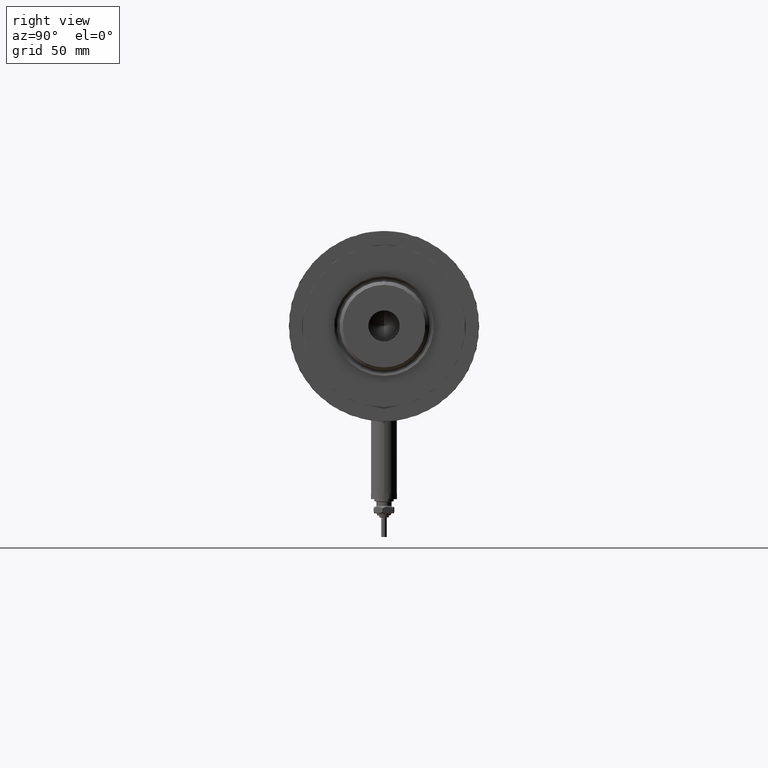
[diagram: clean part render]
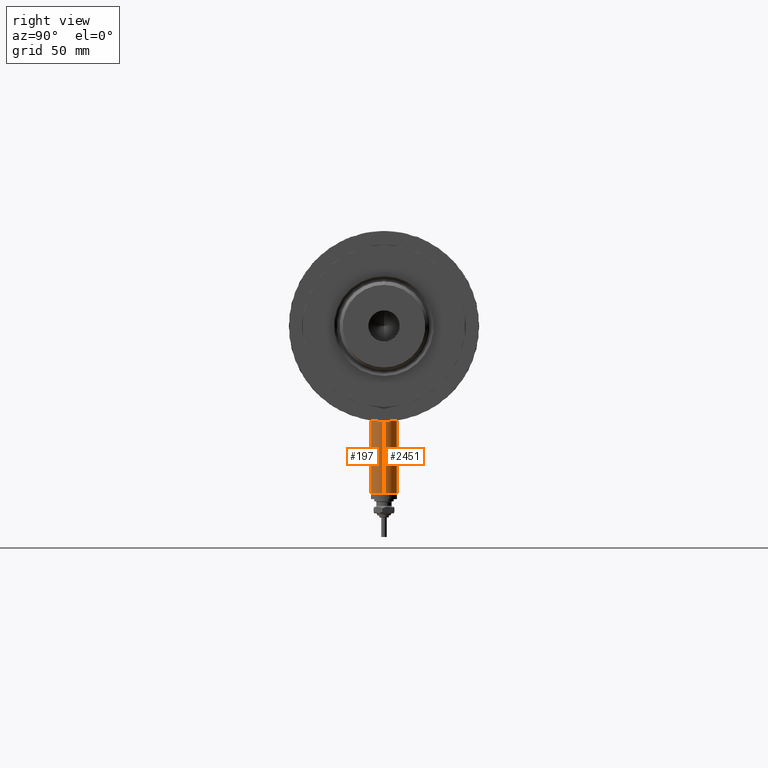
[diagram: same view with one multi-face feature highlighted, each face labeled with its STEP entity id]
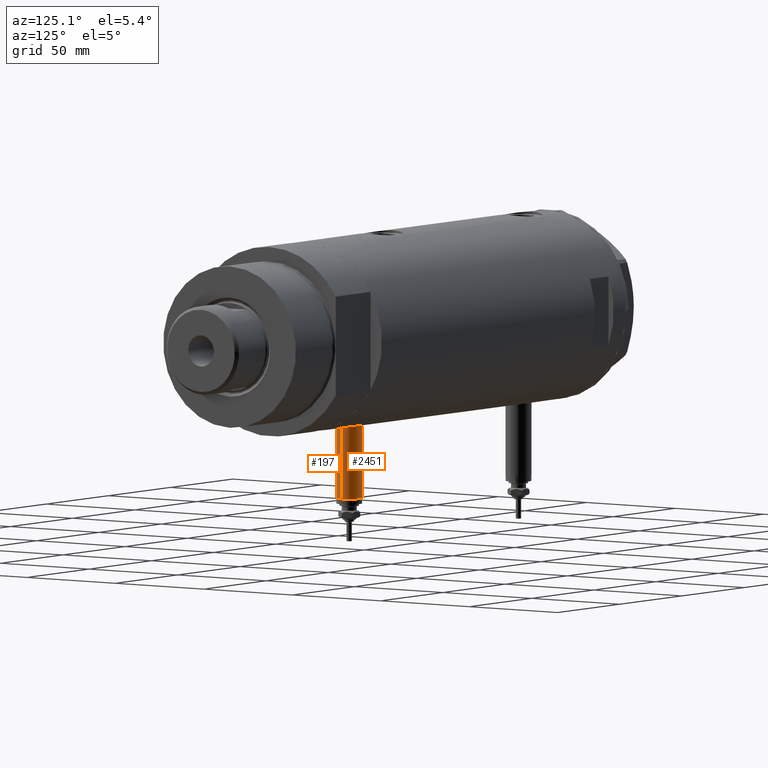
[diagram: same view with one multi-face feature highlighted, each face labeled with its STEP entity id]
A machine part, right view. The highlighted faces form ONE feature: a constant-radius fillet chain: 2 tangent blend faces with common blend radius 6 mm. The faces share edges in the B-rep.
A second angle (auxiliary view) of the same feature is appended — it is thin or edge-on in the first view.
Their STEP definitions:
[1] entity #2451 (Cylinder):
#43 = CARTESIAN_POINT ( 'NONE',  ( -77.50000000000000000, 7.347880794884122694E-16, -55.90000000000000568 ) ) ;
#56 = LINE ( 'NONE', #4762, #195 ) ;
#104 = DIRECTION ( 'NONE',  ( 1.000000000000000000, -0.000000000000000000, -0.000000000000000000 ) ) ;
#195 = VECTOR ( 'NONE', #1580, 1000.000000000000000 ) ;
#321 = ORIENTED_EDGE ( 'NONE', *, *, #2966, .F. ) ;
#358 = EDGE_CURVE ( 'NONE', #5083, #3292, #56, .T. ) ;
#534 = DIRECTION ( 'NONE',  ( -1.000000000000000000, 0.000000000000000000, 0.000000000000000000 ) ) ;
#728 = DIRECTION ( 'NONE',  ( -1.000000000000000000, 0.000000000000000000, 0.000000000000000000 ) ) ;
#798 = CARTESIAN_POINT ( 'NONE',  ( -77.50000000000000000, 0.000000000000000000, -61.90000000000001279 ) ) ;
#931 = CARTESIAN_POINT ( 'NONE',  ( -77.50000000000000000, 0.000000000000000000, -67.90000000000001990 ) ) ;
#972 = AXIS2_PLACEMENT_3D ( 'NONE', #3084, #728, #2046 ) ;
#1455 = CIRCLE ( 'NONE', #1857, 6.000000000000005329 ) ;
#1580 = DIRECTION ( 'NONE',  ( 1.000000000000000000, -0.000000000000000000, -0.000000000000000000 ) ) ;
#1587 = ORIENTED_EDGE ( 'NONE', *, *, #358, .F. ) ;
#1857 = AXIS2_PLACEMENT_3D ( 'NONE', #4269, #534, #3841 ) ;
#1949 = CIRCLE ( 'NONE', #972, 6.000000000000005329 ) ;
#2046 = DIRECTION ( 'NONE',  ( 0.000000000000000000, 0.000000000000000000, 1.000000000000000000 ) ) ;
#2153 = EDGE_LOOP ( 'NONE', ( #321, #4417, #3267, #1587 ) ) ;
#2451 = ADVANCED_FACE ( 'NONE', ( #3229 ), #3560, .T. ) ;
#2966 = EDGE_CURVE ( 'NONE', #5370, #5083, #1455, .T. ) ;
#3084 = CARTESIAN_POINT ( 'NONE',  ( -42.79999999999999716, 0.000000000000000000, -61.90000000000001279 ) ) ;
#3217 = CARTESIAN_POINT ( 'NONE',  ( -42.79999999999999716, 0.000000000000000000, -67.90000000000001990 ) ) ;
#3229 = FACE_OUTER_BOUND ( 'NONE', #2153, .T. ) ;
#3267 = ORIENTED_EDGE ( 'NONE', *, *, #3524, .T. ) ;
#3292 = VERTEX_POINT ( 'NONE', #3217 ) ;
#3442 = EDGE_CURVE ( 'NONE', #5370, #5892, #4316, .T. ) ;
#3524 = EDGE_CURVE ( 'NONE', #5892, #3292, #1949, .T. ) ;
#3560 = CYLINDRICAL_SURFACE ( 'NONE', #5530, 6.000000000000005329 ) ;
#3703 = VECTOR ( 'NONE', #104, 1000.000000000000000 ) ;
#3841 = DIRECTION ( 'NONE',  ( 0.000000000000000000, 0.000000000000000000, 1.000000000000000000 ) ) ;
#4040 = DIRECTION ( 'NONE',  ( 1.000000000000000000, -0.000000000000000000, -0.000000000000000000 ) ) ;
#4269 = CARTESIAN_POINT ( 'NONE',  ( -77.50000000000000000, 0.000000000000000000, -61.90000000000001279 ) ) ;
#4316 = LINE ( 'NONE', #43, #3703 ) ;
#4417 = ORIENTED_EDGE ( 'NONE', *, *, #3442, .T. ) ;
#4610 = CARTESIAN_POINT ( 'NONE',  ( -77.50000000000000000, 7.347880794884119736E-16, -55.90000000000000568 ) ) ;
#4762 = CARTESIAN_POINT ( 'NONE',  ( -77.50000000000000000, 0.000000000000000000, -67.90000000000001990 ) ) ;
#5083 = VERTEX_POINT ( 'NONE', #931 ) ;
#5262 = CARTESIAN_POINT ( 'NONE',  ( -42.79999999999999716, 7.347880794884119736E-16, -55.90000000000000568 ) ) ;
#5370 = VERTEX_POINT ( 'NONE', #4610 ) ;
#5448 = DIRECTION ( 'NONE',  ( 0.000000000000000000, 0.000000000000000000, -1.000000000000000000 ) ) ;
#5530 = AXIS2_PLACEMENT_3D ( 'NONE', #798, #4040, #5448 ) ;
#5892 = VERTEX_POINT ( 'NONE', #5262 ) ;
[2] entity #197 (Cylinder):
#43 = CARTESIAN_POINT ( 'NONE',  ( -77.50000000000000000, 7.347880794884122694E-16, -55.90000000000000568 ) ) ;
#56 = LINE ( 'NONE', #4762, #195 ) ;
#104 = DIRECTION ( 'NONE',  ( 1.000000000000000000, -0.000000000000000000, -0.000000000000000000 ) ) ;
#195 = VECTOR ( 'NONE', #1580, 1000.000000000000000 ) ;
#197 = ADVANCED_FACE ( 'NONE', ( #1368 ), #933, .T. ) ;
#224 = DIRECTION ( 'NONE',  ( -1.000000000000000000, 0.000000000000000000, 0.000000000000000000 ) ) ;
#358 = EDGE_CURVE ( 'NONE', #5083, #3292, #56, .T. ) ;
#924 = DIRECTION ( 'NONE',  ( 0.000000000000000000, 0.000000000000000000, 1.000000000000000000 ) ) ;
#931 = CARTESIAN_POINT ( 'NONE',  ( -77.50000000000000000, 0.000000000000000000, -67.90000000000001990 ) ) ;
#933 = CYLINDRICAL_SURFACE ( 'NONE', #4931, 6.000000000000005329 ) ;
#957 = CIRCLE ( 'NONE', #5130, 6.000000000000005329 ) ;
#1368 = FACE_OUTER_BOUND ( 'NONE', #1737, .T. ) ;
#1580 = DIRECTION ( 'NONE',  ( 1.000000000000000000, -0.000000000000000000, -0.000000000000000000 ) ) ;
#1737 = EDGE_LOOP ( 'NONE', ( #5464, #2776, #5335, #1909 ) ) ;
#1767 = DIRECTION ( 'NONE',  ( 0.000000000000000000, 0.000000000000000000, -1.000000000000000000 ) ) ;
#1796 = DIRECTION ( 'NONE',  ( 1.000000000000000000, -0.000000000000000000, -0.000000000000000000 ) ) ;
#1909 = ORIENTED_EDGE ( 'NONE', *, *, #5976, .T. ) ;
#2167 = EDGE_CURVE ( 'NONE', #5083, #5370, #957, .T. ) ;
#2621 = AXIS2_PLACEMENT_3D ( 'NONE', #5975, #3608, #924 ) ;
#2776 = ORIENTED_EDGE ( 'NONE', *, *, #2167, .F. ) ;
#2806 = CARTESIAN_POINT ( 'NONE',  ( -77.50000000000000000, 0.000000000000000000, -61.90000000000001279 ) ) ;
#2909 = CIRCLE ( 'NONE', #2621, 6.000000000000005329 ) ;
#3217 = CARTESIAN_POINT ( 'NONE',  ( -42.79999999999999716, 0.000000000000000000, -67.90000000000001990 ) ) ;
#3292 = VERTEX_POINT ( 'NONE', #3217 ) ;
#3411 = DIRECTION ( 'NONE',  ( 0.000000000000000000, 0.000000000000000000, 1.000000000000000000 ) ) ;
#3438 = CARTESIAN_POINT ( 'NONE',  ( -77.50000000000000000, 0.000000000000000000, -61.90000000000001279 ) ) ;
#3442 = EDGE_CURVE ( 'NONE', #5370, #5892, #4316, .T. ) ;
#3608 = DIRECTION ( 'NONE',  ( -1.000000000000000000, 0.000000000000000000, 0.000000000000000000 ) ) ;
#3703 = VECTOR ( 'NONE', #104, 1000.000000000000000 ) ;
#4316 = LINE ( 'NONE', #43, #3703 ) ;
#4610 = CARTESIAN_POINT ( 'NONE',  ( -77.50000000000000000, 7.347880794884119736E-16, -55.90000000000000568 ) ) ;
#4762 = CARTESIAN_POINT ( 'NONE',  ( -77.50000000000000000, 0.000000000000000000, -67.90000000000001990 ) ) ;
#4931 = AXIS2_PLACEMENT_3D ( 'NONE', #2806, #1796, #1767 ) ;
#5083 = VERTEX_POINT ( 'NONE', #931 ) ;
#5130 = AXIS2_PLACEMENT_3D ( 'NONE', #3438, #224, #3411 ) ;
#5262 = CARTESIAN_POINT ( 'NONE',  ( -42.79999999999999716, 7.347880794884119736E-16, -55.90000000000000568 ) ) ;
#5335 = ORIENTED_EDGE ( 'NONE', *, *, #358, .T. ) ;
#5370 = VERTEX_POINT ( 'NONE', #4610 ) ;
#5464 = ORIENTED_EDGE ( 'NONE', *, *, #3442, .F. ) ;
#5892 = VERTEX_POINT ( 'NONE', #5262 ) ;
#5976 = EDGE_CURVE ( 'NONE', #3292, #5892, #2909, .T. ) ;
#5975 = CARTESIAN_POINT ( 'NONE',  ( -42.79999999999999716, 0.000000000000000000, -61.90000000000001279 ) ) ;